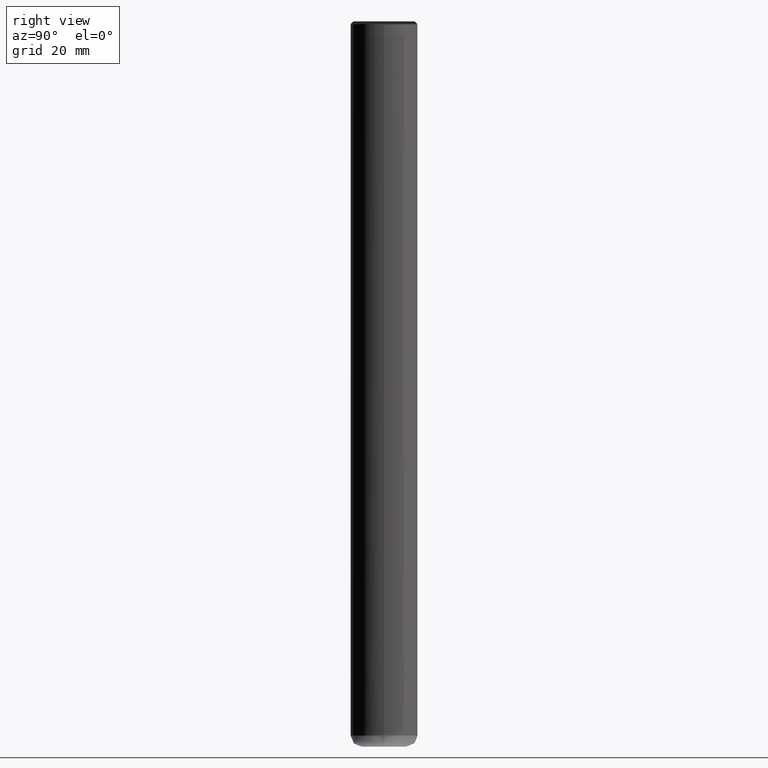
[diagram: clean part render]
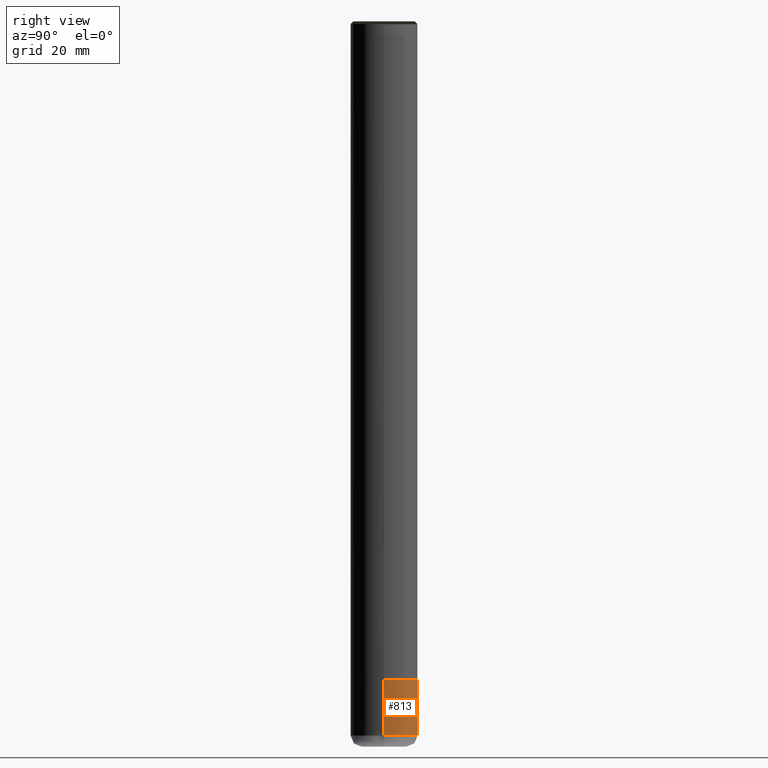
[diagram: same view with one face highlighted and labeled with its STEP entity id]
A machine part, right view. The second image highlights one B-rep face of the part: STEP entity #813.
In plain terms, the highlighted face is a freeform B-spline surface patch.
Its self-contained STEP definition (entity closure, byte-faithful):
#703=CARTESIAN_POINT('',(6.0,0.0,-33.0));
#704=CARTESIAN_POINT('',(6.0,6.0,-33.0));
#705=CARTESIAN_POINT('',(0.0,6.0,-33.0));
#706=CARTESIAN_POINT('',(-6.0,6.0,-33.0));
#707=CARTESIAN_POINT('',(-6.0,0.0,-33.0));
#708=CARTESIAN_POINT('',(6.0,0.0,-23.0));
#709=CARTESIAN_POINT('',(6.0,6.0,-23.0));
#710=CARTESIAN_POINT('',(0.0,6.0,-23.0));
#711=CARTESIAN_POINT('',(-6.0,6.0,-23.0));
#712=CARTESIAN_POINT('',(-6.0,0.0,-23.0));
#794=(
BOUNDED_SURFACE()
B_SPLINE_SURFACE(1,2,(
(#703,#704,#705,#706,#707),
(#708,#709,#710,#711,#712)
), .UNSPECIFIED.,.F.,.F.,.F.)
B_SPLINE_SURFACE_WITH_KNOTS((2,2),(3,2,3),(
0.0,1.0),(
0.0,0.5,1.0), .UNSPECIFIED.)
GEOMETRIC_REPRESENTATION_ITEM()
RATIONAL_B_SPLINE_SURFACE(((1.0,0.707106781187,1.0,0.707106781187,1.0),
(1.0,0.707106781187,1.0,0.707106781187,1.0)
))
REPRESENTATION_ITEM('')
SURFACE()
);
#795=(
BOUNDED_CURVE()
B_SPLINE_CURVE(2,(#708,#709,#710,#711,#712),.UNSPECIFIED.,.F.,.F.)
B_SPLINE_CURVE_WITH_KNOTS((3,2,3),
(0.0,0.5,1.0),.UNSPECIFIED.)
CURVE()
GEOMETRIC_REPRESENTATION_ITEM()
RATIONAL_B_SPLINE_CURVE((1.0,0.707106781187,1.0,0.707106781187,1.0))
REPRESENTATION_ITEM('')
);
#796=(
BOUNDED_CURVE()
B_SPLINE_CURVE(1,(#712,#707),.UNSPECIFIED.,.F.,.F.)
B_SPLINE_CURVE_WITH_KNOTS((2,2),
(0.0,1.0),.UNSPECIFIED.)
CURVE()
GEOMETRIC_REPRESENTATION_ITEM()
RATIONAL_B_SPLINE_CURVE((1.0,1.0))
REPRESENTATION_ITEM('')
);
#797=(
BOUNDED_CURVE()
B_SPLINE_CURVE(2,(#707,#706,#705,#704,#703),.UNSPECIFIED.,.F.,.F.)
B_SPLINE_CURVE_WITH_KNOTS((3,2,3),
(0.0,0.5,1.0),.UNSPECIFIED.)
CURVE()
GEOMETRIC_REPRESENTATION_ITEM()
RATIONAL_B_SPLINE_CURVE((1.0,0.707106781187,1.0,0.707106781187,1.0))
REPRESENTATION_ITEM('')
);
#798=(
BOUNDED_CURVE()
B_SPLINE_CURVE(1,(#703,#708),.UNSPECIFIED.,.F.,.F.)
B_SPLINE_CURVE_WITH_KNOTS((2,2),
(0.0,1.0),.UNSPECIFIED.)
CURVE()
GEOMETRIC_REPRESENTATION_ITEM()
RATIONAL_B_SPLINE_CURVE((1.0,1.0))
REPRESENTATION_ITEM('')
);
#799=VERTEX_POINT('',#703);
#800=VERTEX_POINT('',#707);
#801=VERTEX_POINT('',#708);
#802=VERTEX_POINT('',#712);
#803=EDGE_CURVE('',#801,#802,#795,.T.);
#804=EDGE_CURVE('',#802,#800,#796,.T.);
#805=EDGE_CURVE('',#800,#799,#797,.T.);
#806=EDGE_CURVE('',#799,#801,#798,.T.);
#807=ORIENTED_EDGE('',*,*,#803,.T.);
#808=ORIENTED_EDGE('',*,*,#804,.T.);
#809=ORIENTED_EDGE('',*,*,#805,.T.);
#810=ORIENTED_EDGE('',*,*,#806,.T.);
#811=EDGE_LOOP('',(#807,#808,#809,#810));
#812=FACE_OUTER_BOUND('',#811,.T.);
#813=ADVANCED_FACE('',(#812),#794,.T.);